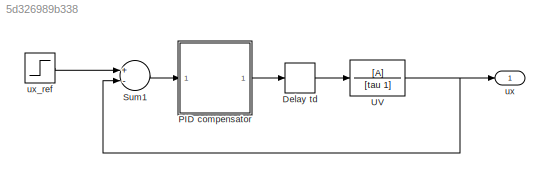
MODEL slx_5d326989b338
KIND model
CONFIG AbsTol = 1e-10
CONFIG EnableMultiTasking = off
CONFIG FixedStep = auto
CONFIG MaxStep = auto
CONFIG MinStep = auto
CONFIG RelTol = 1e-8
CONFIG SampleTimeConstraint = Unconstrained
CONFIG Solver = ode45
CONFIG SolverName = ode45
CONFIG StartTime = 0.0
CONFIG StopTime = 5
BLOCK [TransportDelay] Delay td
  DelayTime = td
  Ports = [1, 1]
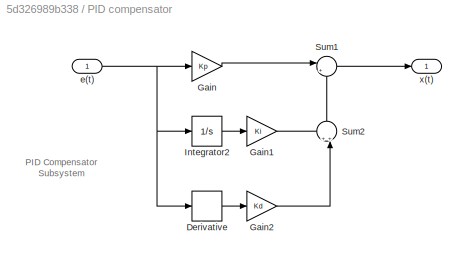
BLOCK [SubSystem] PID compensator
  Ports = [1, 1]
  RequestExecContextInheritance = off
  Variant = off
BLOCK [Derivative] PID compensator/Derivative
BLOCK [Gain] PID compensator/Gain
  Gain = Kp
  OutDataTypeStr = Inherit: Inherit via internal rule
  ParamDataTypeStr = Inherit: Inherit via internal rule
  SaturateOnIntegerOverflow = off
BLOCK [Gain] PID compensator/Gain1
  Gain = Ki
  OutDataTypeStr = Inherit: Inherit via internal rule
  ParamDataTypeStr = Inherit: Inherit via internal rule
  SaturateOnIntegerOverflow = off
BLOCK [Gain] PID compensator/Gain2
  Gain = Kd
  OutDataTypeStr = Inherit: Inherit via internal rule
  ParamDataTypeStr = Inherit: Inherit via internal rule
  SaturateOnIntegerOverflow = off
BLOCK [Integrator] PID compensator/Integrator2
  Ports = [1, 1]
BLOCK [Sum] PID compensator/Sum1
  IconShape = round
  InputSameDT = off
  Inputs = |++
  OutDataTypeStr = Inherit: Inherit via internal rule
  Ports = [2, 1]
  SaturateOnIntegerOverflow = off
BLOCK [Sum] PID compensator/Sum2
  IconShape = round
  InputSameDT = off
  Inputs = ++|
  OutDataTypeStr = Inherit: Inherit via internal rule
  Ports = [2, 1]
  SaturateOnIntegerOverflow = off
BLOCK [Inport] PID compensator/e(t)
  IconDisplay = Port number
BLOCK [Outport] PID compensator/x(t)
  IconDisplay = Port number
BLOCK [Sum] Sum1
  Inputs = +-
  Ports = [2, 1]
BLOCK [TransferFcn] UV
  Denominator = [tau 1]
  Numerator = [A]
BLOCK [Outport] ux
  IconDisplay = Port number
BLOCK [Step] ux_ref
  After = 0.5
  Time = 0
ANNOTATION PID compensator: PID Compensator Subsystem
LINE Delay td:1 -> UV:1
LINE PID compensator/Derivative:1 -> PID compensator/Gain2:1
LINE PID compensator/Gain1:1 -> PID compensator/Sum2:1
LINE PID compensator/Gain2:1 -> PID compensator/Sum2:2
LINE PID compensator/Gain:1 -> PID compensator/Sum1:1
LINE PID compensator/Integrator2:1 -> PID compensator/Gain1:1
LINE PID compensator/Sum1:1 -> PID compensator/x(t):1
LINE PID compensator/Sum2:1 -> PID compensator/Sum1:2
NET PID compensator/e(t):1 -> PID compensator/Derivative:1, PID compensator/Gain:1, PID compensator/Integrator2:1
LINE PID compensator:1 -> Delay td:1
LINE Sum1:1 -> PID compensator:1
NET UV:1 -> Sum1:2, ux:1
LINE ux_ref:1 -> Sum1:1
note: NET lines group one-source signal fan-out (src -> all destinations, sorted); 1:1 wires keep LINE
